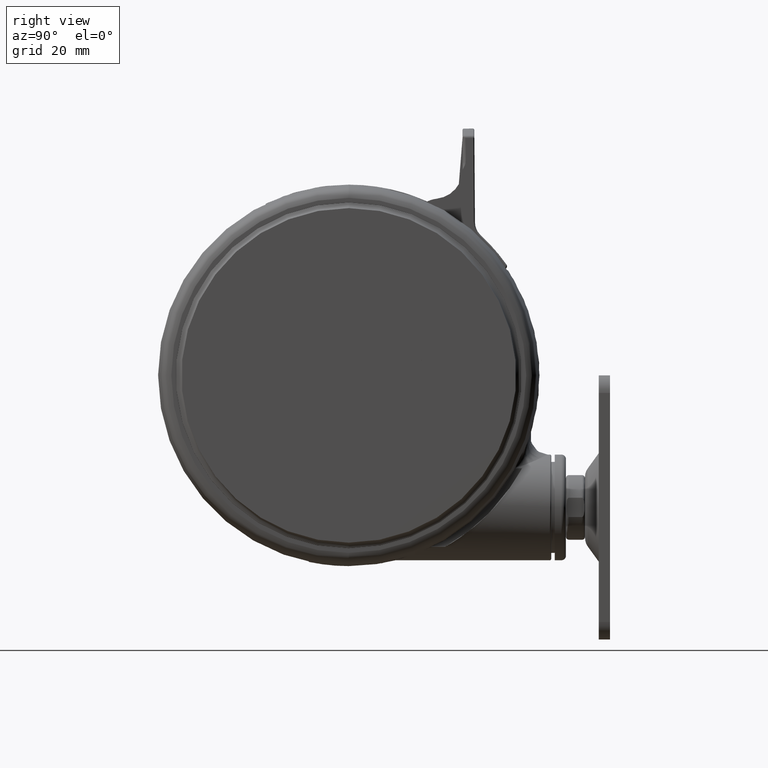
[diagram: clean part render]
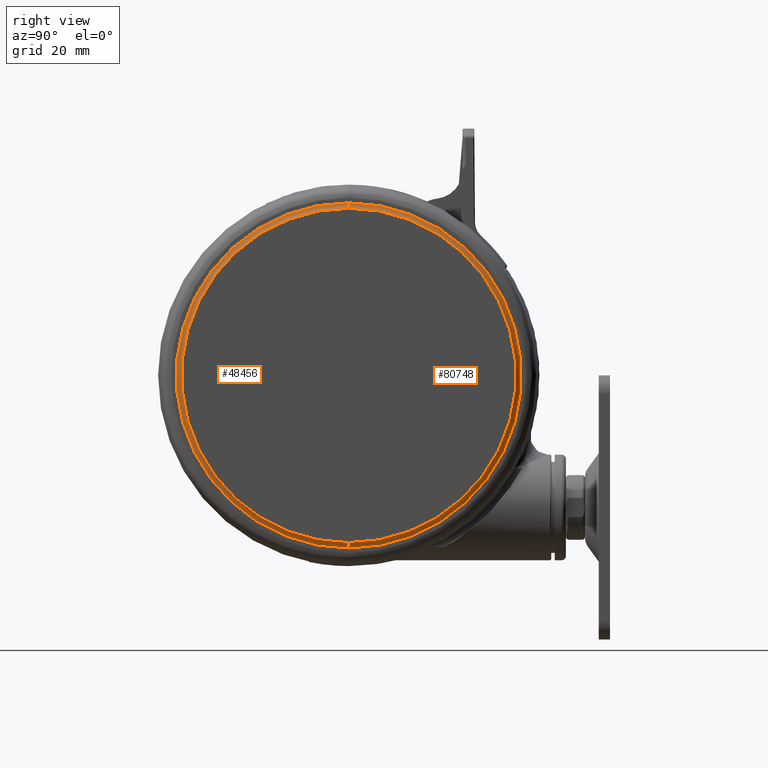
[diagram: same view with one multi-face feature highlighted, each face labeled with its STEP entity id]
A machine part, right view. The highlighted faces form ONE feature: a constant-radius fillet chain: 2 tangent blend faces with common blend radius 2.2 mm. The faces share edges in the B-rep.
Their STEP definitions:
[1] entity #48456 (Torus):
#5119 = CARTESIAN_POINT ( 'NONE',  ( 59.20000000000000300, -1.575391201928092300E-014, -0.1205505282296627800 ) ) ;
#6419 = AXIS2_PLACEMENT_3D ( 'NONE', #72316, #34146, #78709 ) ;
#11140 = CIRCLE ( 'NONE', #82187, 58.81739130434760200 ) ;
#11519 = DIRECTION ( 'NONE',  ( -1.000000000000000000, 2.661133787040694400E-016, 0.0000000000000000000 ) ) ;
#11931 = EDGE_CURVE ( 'NONE', #44963, #60346, #46550, .T. ) ;
#12198 = EDGE_CURVE ( 'NONE', #36859, #76603, #19007, .T. ) ;
#13399 = CARTESIAN_POINT ( 'NONE',  ( 58.81739130435093400, -1.565209472656019200E-014, -2.287024757482408100 ) ) ;
#16873 = CARTESIAN_POINT ( 'NONE',  ( 0.0000000000000000000, 0.0000000000000000000, -2.287024757482408100 ) ) ;
#17290 = DIRECTION ( 'NONE',  ( -1.000000000000000000, 3.885780586188049900E-016, 0.0000000000000000000 ) ) ;
#17640 = AXIS2_PLACEMENT_3D ( 'NONE', #5119, #49769, #11519 ) ;
#18539 = CARTESIAN_POINT ( 'NONE',  ( 0.0000000000000000000, 0.0000000000000000000, -0.1205505282296627800 ) ) ;
#18629 = EDGE_LOOP ( 'NONE', ( #40892, #70850, #51130, #45647 ) ) ;
#19007 = CIRCLE ( 'NONE', #17640, 2.200000000000000600 ) ;
#20938 = CIRCLE ( 'NONE', #52358, 57.00000000000000000 ) ;
#23277 = DIRECTION ( 'NONE',  ( 1.000000000000000000, -3.885780586188049900E-016, 0.0000000000000000000 ) ) ;
#24953 = DIRECTION ( 'NONE',  ( -1.000000000000000000, 3.885780586188049900E-016, 0.0000000000000000000 ) ) ;
#27151 = EDGE_CURVE ( 'NONE', #44963, #36859, #11140, .T. ) ;
#30079 = DIRECTION ( 'NONE',  ( 0.0000000000000000000, 0.0000000000000000000, -1.000000000000000000 ) ) ;
#34146 = DIRECTION ( 'NONE',  ( -3.885780586188049900E-016, -1.000000000000000000, -0.0000000000000000000 ) ) ;
#36526 = CARTESIAN_POINT ( 'NONE',  ( 0.0000000000000000000, 0.0000000000000000000, -0.1205505282296627800 ) ) ;
#36758 = AXIS2_PLACEMENT_3D ( 'NONE', #36526, #30079, #17290 ) ;
#36859 = VERTEX_POINT ( 'NONE', #13399 ) ;
#36930 = CARTESIAN_POINT ( 'NONE',  ( -57.00000000000000000, 2.214894934127188600E-014, -0.1205505282296627800 ) ) ;
#40892 = ORIENTED_EDGE ( 'NONE', *, *, #27151, .T. ) ;
#44963 = VERTEX_POINT ( 'NONE', #56571 ) ;
#45647 = ORIENTED_EDGE ( 'NONE', *, *, #11931, .F. ) ;
#46550 = CIRCLE ( 'NONE', #6419, 2.200000000000000600 ) ;
#48456 = ADVANCED_FACE ( 'NONE', ( #58185 ), #69171, .F. ) ;
#49769 = DIRECTION ( 'NONE',  ( 2.661133787040696400E-016, 1.000000000000000000, 0.0000000000000000000 ) ) ;
#51130 = ORIENTED_EDGE ( 'NONE', *, *, #68725, .F. ) ;
#52358 = AXIS2_PLACEMENT_3D ( 'NONE', #18539, #63136, #24953 ) ;
#56571 = CARTESIAN_POINT ( 'NONE',  ( -58.81739130435093400, 2.285514772606726800E-014, -2.287024757482408100 ) ) ;
#58185 = FACE_OUTER_BOUND ( 'NONE', #18629, .T. ) ;
#60346 = VERTEX_POINT ( 'NONE', #36930 ) ;
#61477 = DIRECTION ( 'NONE',  ( 0.0000000000000000000, 0.0000000000000000000, 1.000000000000000000 ) ) ;
#63136 = DIRECTION ( 'NONE',  ( -0.0000000000000000000, -0.0000000000000000000, 1.000000000000000000 ) ) ;
#68725 = EDGE_CURVE ( 'NONE', #60346, #76603, #20938, .T. ) ;
#69083 = CARTESIAN_POINT ( 'NONE',  ( 57.00000000000000000, -1.516846258613197000E-014, -0.1205505282296627800 ) ) ;
#69171 = TOROIDAL_SURFACE ( 'NONE', #36758, 59.20000000000000300, 2.200000000000000200 ) ;
#70850 = ORIENTED_EDGE ( 'NONE', *, *, #12198, .T. ) ;
#72316 = CARTESIAN_POINT ( 'NONE',  ( -59.20000000000000300, 2.300382107023325500E-014, -0.1205505282296627800 ) ) ;
#76603 = VERTEX_POINT ( 'NONE', #69083 ) ;
#78709 = DIRECTION ( 'NONE',  ( 1.000000000000000000, -3.885780586188053300E-016, 0.0000000000000000000 ) ) ;
#82187 = AXIS2_PLACEMENT_3D ( 'NONE', #16873, #61477, #23277 ) ;
[2] entity #80748 (Torus):
#319 = AXIS2_PLACEMENT_3D ( 'NONE', #71358, #33161, #77732 ) ;
#1662 = ORIENTED_EDGE ( 'NONE', *, *, #8531, .T. ) ;
#2174 = CARTESIAN_POINT ( 'NONE',  ( 0.0000000000000000000, 0.0000000000000000000, -0.1205505282296627800 ) ) ;
#3526 = TOROIDAL_SURFACE ( 'NONE', #82171, 59.20000000000000300, 2.200000000000000200 ) ;
#5119 = CARTESIAN_POINT ( 'NONE',  ( 59.20000000000000300, -1.575391201928092300E-014, -0.1205505282296627800 ) ) ;
#6419 = AXIS2_PLACEMENT_3D ( 'NONE', #72316, #34146, #78709 ) ;
#6686 = ORIENTED_EDGE ( 'NONE', *, *, #12198, .F. ) ;
#8531 = EDGE_CURVE ( 'NONE', #36859, #44963, #23148, .T. ) ;
#8555 = DIRECTION ( 'NONE',  ( -1.000000000000000000, 3.885780586188049900E-016, 0.0000000000000000000 ) ) ;
#11519 = DIRECTION ( 'NONE',  ( -1.000000000000000000, 2.661133787040694400E-016, 0.0000000000000000000 ) ) ;
#11931 = EDGE_CURVE ( 'NONE', #44963, #60346, #46550, .T. ) ;
#12198 = EDGE_CURVE ( 'NONE', #36859, #76603, #19007, .T. ) ;
#13399 = CARTESIAN_POINT ( 'NONE',  ( 58.81739130435093400, -1.565209472656019200E-014, -2.287024757482408100 ) ) ;
#14259 = ORIENTED_EDGE ( 'NONE', *, *, #60088, .F. ) ;
#17640 = AXIS2_PLACEMENT_3D ( 'NONE', #5119, #49769, #11519 ) ;
#19007 = CIRCLE ( 'NONE', #17640, 2.200000000000000600 ) ;
#20431 = FACE_OUTER_BOUND ( 'NONE', #48468, .T. ) ;
#23148 = CIRCLE ( 'NONE', #319, 58.81739130434760200 ) ;
#30312 = CIRCLE ( 'NONE', #49081, 57.00000000000000000 ) ;
#33161 = DIRECTION ( 'NONE',  ( 0.0000000000000000000, 0.0000000000000000000, 1.000000000000000000 ) ) ;
#34146 = DIRECTION ( 'NONE',  ( -3.885780586188049900E-016, -1.000000000000000000, -0.0000000000000000000 ) ) ;
#36859 = VERTEX_POINT ( 'NONE', #13399 ) ;
#36930 = CARTESIAN_POINT ( 'NONE',  ( -57.00000000000000000, 2.214894934127188600E-014, -0.1205505282296627800 ) ) ;
#44963 = VERTEX_POINT ( 'NONE', #56571 ) ;
#46550 = CIRCLE ( 'NONE', #6419, 2.200000000000000600 ) ;
#46789 = DIRECTION ( 'NONE',  ( -0.0000000000000000000, -0.0000000000000000000, 1.000000000000000000 ) ) ;
#48468 = EDGE_LOOP ( 'NONE', ( #6686, #1662, #51787, #14259 ) ) ;
#49081 = AXIS2_PLACEMENT_3D ( 'NONE', #2174, #46789, #8555 ) ;
#49769 = DIRECTION ( 'NONE',  ( 2.661133787040696400E-016, 1.000000000000000000, 0.0000000000000000000 ) ) ;
#51787 = ORIENTED_EDGE ( 'NONE', *, *, #11931, .T. ) ;
#56571 = CARTESIAN_POINT ( 'NONE',  ( -58.81739130435093400, 2.285514772606726800E-014, -2.287024757482408100 ) ) ;
#60088 = EDGE_CURVE ( 'NONE', #76603, #60346, #30312, .T. ) ;
#60346 = VERTEX_POINT ( 'NONE', #36930 ) ;
#62841 = CARTESIAN_POINT ( 'NONE',  ( 0.0000000000000000000, 0.0000000000000000000, -0.1205505282296627800 ) ) ;
#69083 = CARTESIAN_POINT ( 'NONE',  ( 57.00000000000000000, -1.516846258613197000E-014, -0.1205505282296627800 ) ) ;
#69554 = DIRECTION ( 'NONE',  ( 0.0000000000000000000, 0.0000000000000000000, -1.000000000000000000 ) ) ;
#71358 = CARTESIAN_POINT ( 'NONE',  ( 0.0000000000000000000, 0.0000000000000000000, -2.287024757482408100 ) ) ;
#72316 = CARTESIAN_POINT ( 'NONE',  ( -59.20000000000000300, 2.300382107023325500E-014, -0.1205505282296627800 ) ) ;
#76603 = VERTEX_POINT ( 'NONE', #69083 ) ;
#77732 = DIRECTION ( 'NONE',  ( 1.000000000000000000, -3.885780586188049900E-016, 0.0000000000000000000 ) ) ;
#78709 = DIRECTION ( 'NONE',  ( 1.000000000000000000, -3.885780586188053300E-016, 0.0000000000000000000 ) ) ;
#80748 = ADVANCED_FACE ( 'NONE', ( #20431 ), #3526, .F. ) ;
#82171 = AXIS2_PLACEMENT_3D ( 'NONE', #62841, #69554, #82291 ) ;
#82291 = DIRECTION ( 'NONE',  ( -1.000000000000000000, 3.885780586188049900E-016, 0.0000000000000000000 ) ) ;